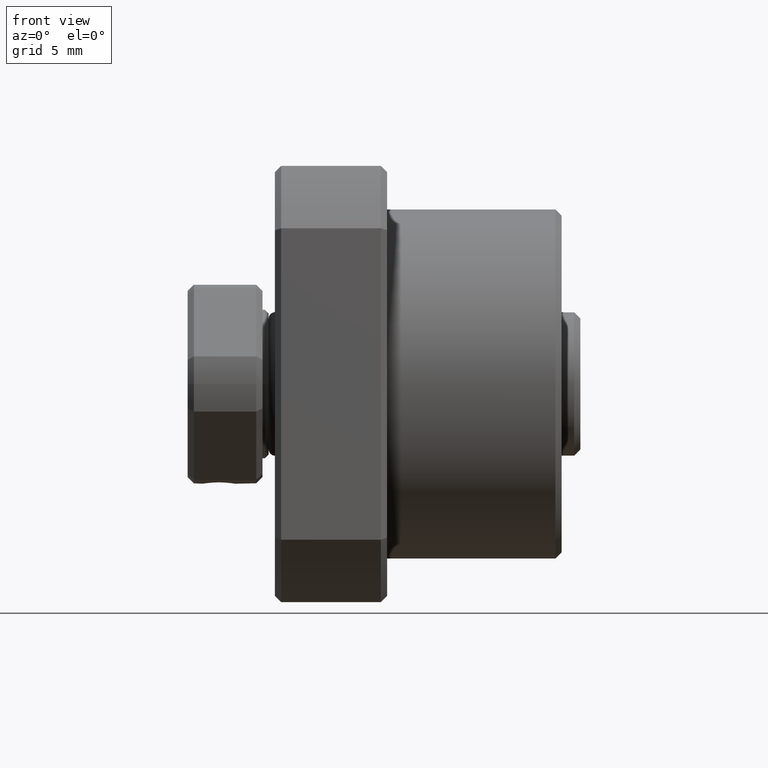
[diagram: clean part render]
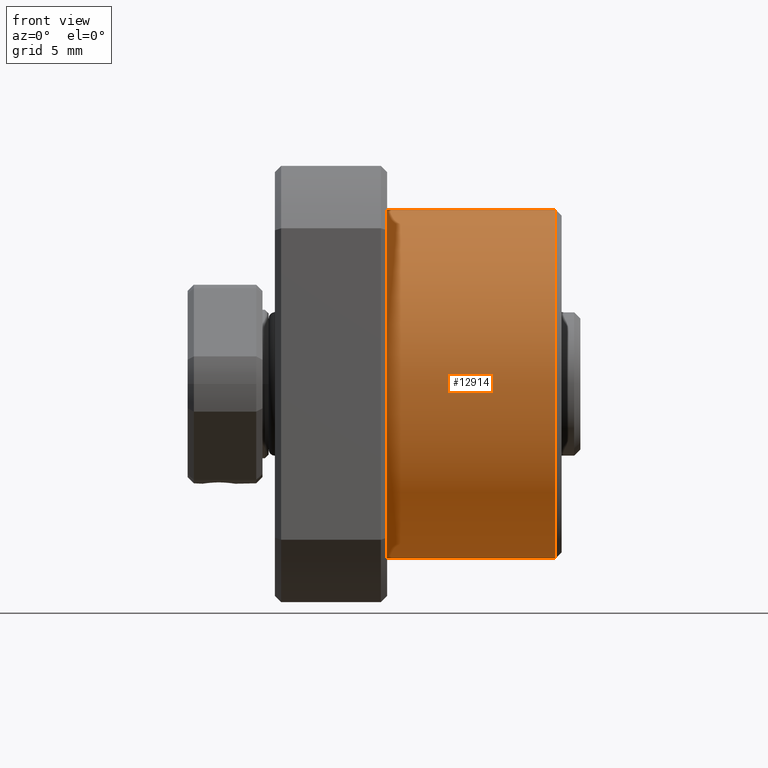
[diagram: same view with one face highlighted and labeled with its STEP entity id]
A machine part, front view. The second image highlights one B-rep face of the part: STEP entity #12914.
In plain terms, the highlighted cylindrical surface (partial cylindrical patch) has radius 14 mm, axis along (-1, -0, -0).
Its self-contained STEP definition (entity closure, byte-faithful):
#12563 = VERTEX_POINT ( 'NONE', #48342 ) ;
#12584 = VERTEX_POINT ( 'NONE', #48324 ) ;
#12697 = EDGE_CURVE ( 'NONE', #12584, #12698, #48482, .T. ) ;
#12698 = VERTEX_POINT ( 'NONE', #48478 ) ;
#12702 = VERTEX_POINT ( 'NONE', #48472 ) ;
#12704 = EDGE_CURVE ( 'NONE', #12563, #12702, #48470, .T. ) ;
#12790 = EDGE_CURVE ( 'NONE', #12698, #12702, #48566, .T. ) ;
#12866 = ORIENTED_EDGE ( 'NONE', *, *, #12704, .T. ) ;
#12868 = ORIENTED_EDGE ( 'NONE', *, *, #12790, .F. ) ;
#12914 = ADVANCED_FACE ( 'NONE', ( #48690 ), #48689, .T. ) ;
#12915 = EDGE_LOOP ( 'NONE', ( #12916, #12917, #12866, #12868 ) ) ;
#12916 = ORIENTED_EDGE ( 'NONE', *, *, #12697, .F. ) ;
#12917 = ORIENTED_EDGE ( 'NONE', *, *, #12918, .T. ) ;
#12918 = EDGE_CURVE ( 'NONE', #12584, #12563, #48720, .T. ) ;
#48324 = CARTESIAN_POINT ( 'NONE',  ( 22.50000000000000700, 1.714448895351328400E-015, -14.00000000000000200 ) ) ;
#48342 = CARTESIAN_POINT ( 'NONE',  ( 22.50000000000000700, 0.0000000000000000000, 14.00000000000000200 ) ) ;
#48467 = DIRECTION ( 'NONE',  ( -1.000000000000000000, -0.0000000000000000000, -0.0000000000000000000 ) ) ;
#48468 = VECTOR ( 'NONE', #48467, 1000.000000000000000 ) ;
#48469 = CARTESIAN_POINT ( 'NONE',  ( -94.46891865289678900, 0.0000000000000000000, 14.00000000000000200 ) ) ;
#48470 = LINE ( 'NONE', #48469, #48468 ) ;
#48472 = CARTESIAN_POINT ( 'NONE',  ( 8.999999999999994700, 0.0000000000000000000, 14.00000000000000000 ) ) ;
#48478 = CARTESIAN_POINT ( 'NONE',  ( 8.999999999999994700, 1.714448895351328200E-015, -14.00000000000000000 ) ) ;
#48479 = DIRECTION ( 'NONE',  ( -1.000000000000000000, -0.0000000000000000000, -0.0000000000000000000 ) ) ;
#48480 = VECTOR ( 'NONE', #48479, 1000.000000000000000 ) ;
#48481 = CARTESIAN_POINT ( 'NONE',  ( -94.46891865289678900, 1.714448895351328400E-015, -14.00000000000000200 ) ) ;
#48482 = LINE ( 'NONE', #48481, #48480 ) ;
#48566 = CIRCLE ( 'NONE', #48621, 14.00000000000000000 ) ;
#48618 = DIRECTION ( 'NONE',  ( 0.0000000000000000000, 0.0000000000000000000, 1.000000000000000000 ) ) ;
#48619 = DIRECTION ( 'NONE',  ( -1.000000000000000000, -0.0000000000000000000, -0.0000000000000000000 ) ) ;
#48620 = CARTESIAN_POINT ( 'NONE',  ( 8.999999999999994700, 0.0000000000000000000, 0.0000000000000000000 ) ) ;
#48621 = AXIS2_PLACEMENT_3D ( 'NONE', #48620, #48619, #48618 ) ;
#48689 = CYLINDRICAL_SURFACE ( 'NONE', #48724, 14.00000000000000200 ) ;
#48690 = FACE_OUTER_BOUND ( 'NONE', #12915, .T. ) ;
#48716 = DIRECTION ( 'NONE',  ( 0.0000000000000000000, 0.0000000000000000000, 1.000000000000000000 ) ) ;
#48717 = DIRECTION ( 'NONE',  ( -1.000000000000000000, -0.0000000000000000000, -0.0000000000000000000 ) ) ;
#48718 = CARTESIAN_POINT ( 'NONE',  ( 22.50000000000000700, 0.0000000000000000000, 0.0000000000000000000 ) ) ;
#48719 = AXIS2_PLACEMENT_3D ( 'NONE', #48718, #48717, #48716 ) ;
#48720 = CIRCLE ( 'NONE', #48719, 14.00000000000000200 ) ;
#48721 = DIRECTION ( 'NONE',  ( 0.0000000000000000000, 0.0000000000000000000, 1.000000000000000000 ) ) ;
#48722 = DIRECTION ( 'NONE',  ( -1.000000000000000000, -0.0000000000000000000, -0.0000000000000000000 ) ) ;
#48723 = CARTESIAN_POINT ( 'NONE',  ( -94.46891865289678900, 0.0000000000000000000, 0.0000000000000000000 ) ) ;
#48724 = AXIS2_PLACEMENT_3D ( 'NONE', #48723, #48722, #48721 ) ;